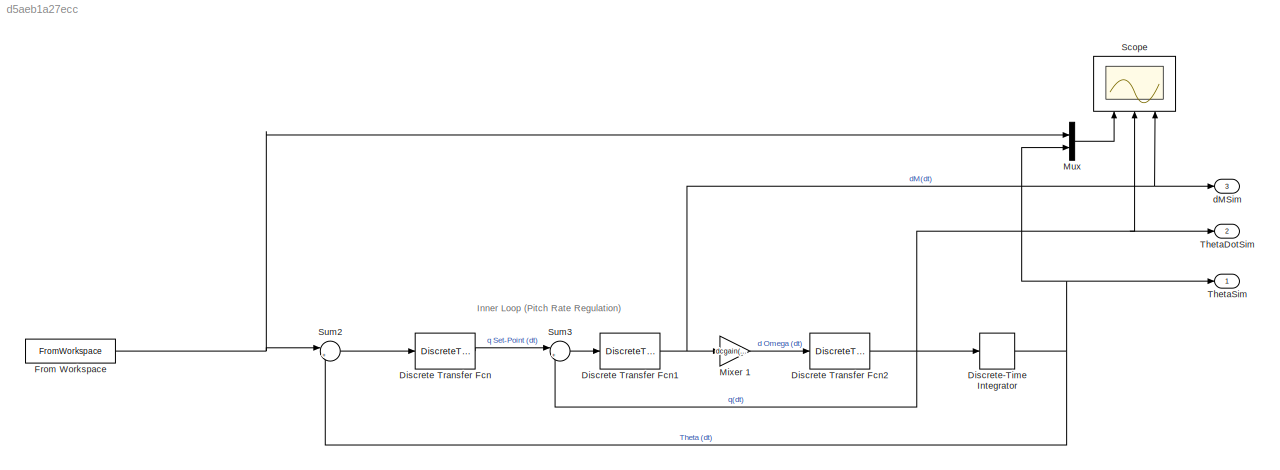
MODEL slx_d5aeb1a27ecc
KIND model
CONFIG AbsTol = auto
CONFIG EnableMultiTasking = off
CONFIG FixedStep = auto
CONFIG MaxStep = auto
CONFIG MinStep = auto
CONFIG RelTol = 1e-3
CONFIG SampleTimeConstraint = Unconstrained
CONFIG Solver = VariableStepAuto
CONFIG SolverName = VariableStepAuto
CONFIG StartTime = 0.0
CONFIG StopTime = 10.0
BLOCK [Outport]  ThetaSim 
  IconDisplay = Port number
  SignalName = ThetaSim
BLOCK [Outport]  dMSim
  IconDisplay = Port number
  Port = 3
  SignalName = dMSim
BLOCK [DiscreteTransferFcn] Discrete Transfer Fcn
  Denominator = tf(OptimalOuterController_dt).Denominator{:}
  InputPortMap = u0
  Numerator = tf(OptimalOuterController_dt).Numerator{:}
  Ports = [1, 1]
BLOCK [DiscreteTransferFcn] Discrete Transfer Fcn1
  Denominator = tf(OptimalInnerController_dt).Denominator{:}
  InputPortMap = u0
  Numerator = tf(OptimalInnerController_dt).Numerator{:}
  Ports = [1, 1]
BLOCK [DiscreteTransferFcn] Discrete Transfer Fcn2
  Denominator = PitchRateModel_dt.Denominator{:}
  InputPortMap = u0
  Numerator = PitchRateModel_dt.Numerator{:}
  Ports = [1, 1]
BLOCK [DiscreteIntegrator] Discrete-Time Integrator
  ICPrevOutput = DiscIntNeverNeededParam
  ICPrevScaledInput = DiscIntNeverNeededParam
  InitialConditionSetting = State (most efficient)
  Ports = [1, 1]
  SampleTime = -1
BLOCK [FromWorkspace] From Workspace
  SampleTime = .01
  VariableName = model_theta_sp
  ZeroCross = on
BLOCK [Gain] Mixer 1
  Gain = dcgain(Mixer)
  OutDataTypeStr = Inherit: Inherit via internal rule
  ParamDataTypeStr = Inherit: Inherit via internal rule
  SaturateOnIntegerOverflow = off
BLOCK [Mux] Mux
  DisplayOption = bar
  Inputs = 2
  Ports = [2, 1]
BLOCK [Scope] Scope
  NumInputPorts = 3
  Ports = [3]
  ScopeSpecificationString = Simulink.scopes.TimeScopeBlockCfg('CurrentConfiguration', extmgr.ConfigurationSet(extmgr.Configuration('Core','General UI',true),extmgr.Configuration('Core','Source UI',true),extmgr.Configuration('Sources','WiredSimulink',true),extmgr.Configuration('Visuals','Time Domain',true,'SerializedDisplays',{struct('MinYLimReal','-12.03235','MaxYLimReal','7.1124','YLabelReal','','MinYLimMag','0.00000','MaxY...<+2779ch>
BLOCK [Sum] Sum2
  IconShape = round
  InputSameDT = off
  Inputs = |+-
  OutDataTypeStr = Inherit: Inherit via internal rule
  Ports = [2, 1]
  SaturateOnIntegerOverflow = off
BLOCK [Sum] Sum3
  IconShape = round
  InputSameDT = off
  Inputs = |+-
  OutDataTypeStr = Inherit: Inherit via internal rule
  Ports = [2, 1]
  SaturateOnIntegerOverflow = off
BLOCK [Outport] ThetaDotSim 
  IconDisplay = Port number
  Port = 2
  SignalName = ThetaDotSim
ANNOTATION (root): Inner Loop (Pitch Rate Regulation)
NET Discrete Transfer Fcn1:1 ->  dMSim:1, Mixer 1:1, Scope:3
NET Discrete Transfer Fcn2:1 -> Discrete-Time Integrator:1, Scope:2, Sum3:2, ThetaDotSim :1
LINE Discrete Transfer Fcn:1 -> Sum3:1
NET Discrete-Time Integrator:1 ->  ThetaSim :1, Mux:2, Sum2:2
NET From Workspace:1 -> Mux:1, Sum2:1
LINE Mixer 1:1 -> Discrete Transfer Fcn2:1
LINE Mux:1 -> Scope:1
LINE Sum2:1 -> Discrete Transfer Fcn:1
LINE Sum3:1 -> Discrete Transfer Fcn1:1
note: NET lines group one-source signal fan-out (src -> all destinations, sorted); 1:1 wires keep LINE
